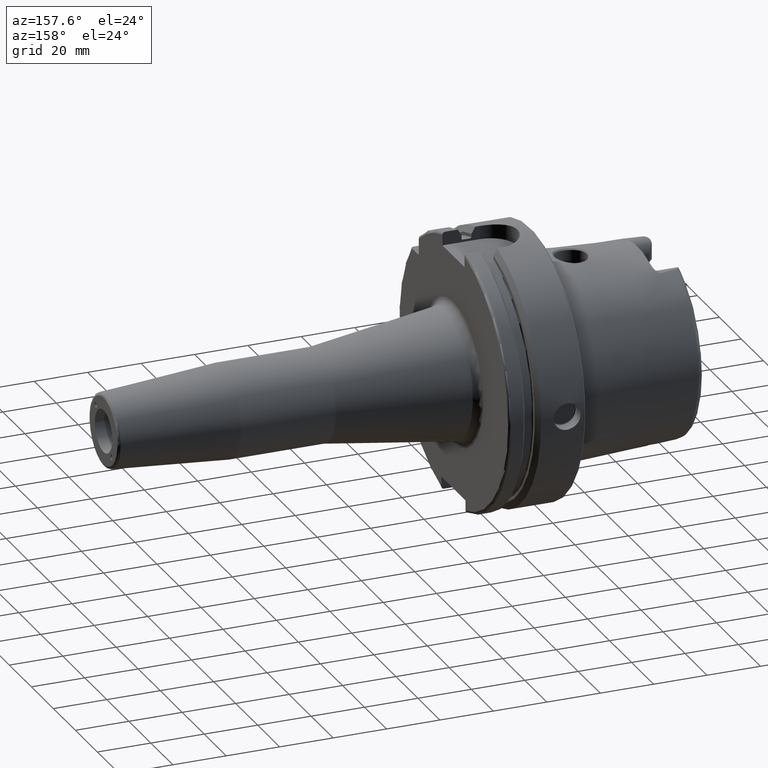
[diagram: clean part render]
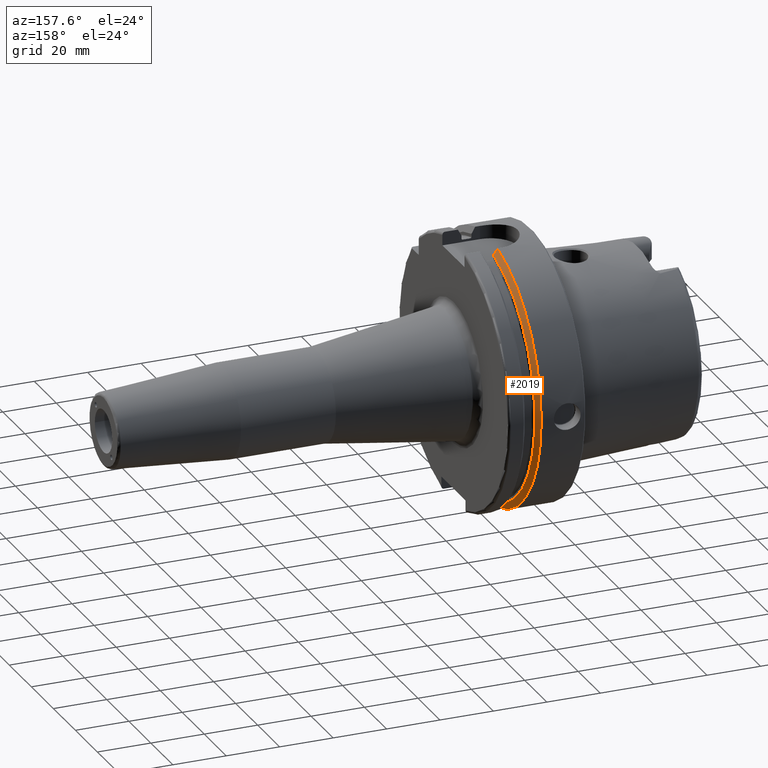
[diagram: same view with one face highlighted and labeled with its STEP entity id]
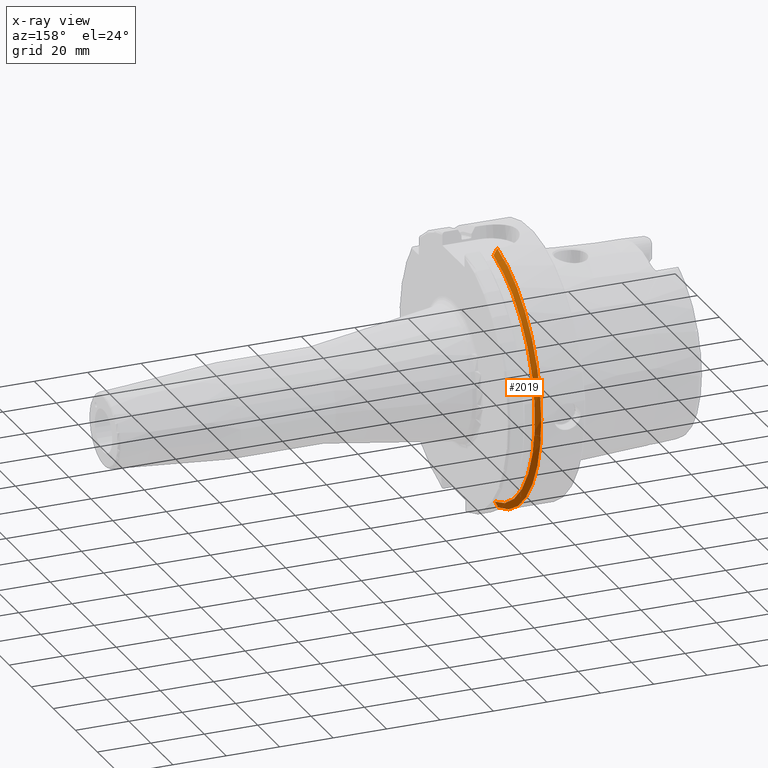
[diagram: x-ray of the same camera — body ghosted, the highlighted face saturated]
A machine part, auxiliary view. The second image highlights one B-rep face of the part: STEP entity #2019.
The next image is the same camera in x-ray: the body ghosted, the highlighted face saturated — about 0% of this face is hidden behind the body in this view.
In plain terms, the highlighted conical surface has half-angle 60 deg.
Its self-contained STEP definition (entity closure, byte-faithful):
#23=(
BOUNDED_CURVE()
B_SPLINE_CURVE(2,(#4098,#4099,#4100),.UNSPECIFIED.,.F.,.F.)
B_SPLINE_CURVE_WITH_KNOTS((3,3),(0.,0.282923490805558),.UNSPECIFIED.)
CURVE()
GEOMETRIC_REPRESENTATION_ITEM()
RATIONAL_B_SPLINE_CURVE((1.,1.00031934109636,1.))
REPRESENTATION_ITEM('')
);
#28=(
BOUNDED_CURVE()
B_SPLINE_CURVE(2,(#4263,#4264,#4265),.UNSPECIFIED.,.F.,.F.)
B_SPLINE_CURVE_WITH_KNOTS((3,3),(0.,0.281931851964124),.UNSPECIFIED.)
CURVE()
GEOMETRIC_REPRESENTATION_ITEM()
RATIONAL_B_SPLINE_CURVE((1.,1.00031639798907,1.))
REPRESENTATION_ITEM('')
);
#274=FACE_OUTER_BOUND('',#401,.T.);
#401=EDGE_LOOP('',(#1687,#1688,#1689,#1690));
#721=CIRCLE('',#2196,50.);
#745=CIRCLE('',#2245,47.5975952641917);
#920=VERTEX_POINT('',#3979);
#921=VERTEX_POINT('',#3981);
#939=VERTEX_POINT('',#4097);
#964=VERTEX_POINT('',#4259);
#1160=EDGE_CURVE('',#921,#920,#721,.T.);
#1190=EDGE_CURVE('',#939,#921,#23,.T.);
#1230=EDGE_CURVE('',#939,#964,#745,.T.);
#1232=EDGE_CURVE('',#920,#964,#28,.T.);
#1687=ORIENTED_EDGE('',*,*,#1190,.T.);
#1688=ORIENTED_EDGE('',*,*,#1160,.T.);
#1689=ORIENTED_EDGE('',*,*,#1232,.T.);
#1690=ORIENTED_EDGE('',*,*,#1230,.F.);
#1944=CONICAL_SURFACE('',#2246,48.7987976320958,1.0471975511966);
#2019=ADVANCED_FACE('',(#274),#1944,.T.);
#2196=AXIS2_PLACEMENT_3D('',#3982,#2612,#2613);
#2245=AXIS2_PLACEMENT_3D('',#4260,#2735,#2736);
#2246=AXIS2_PLACEMENT_3D('',#4262,#2738,#2739);
#2612=DIRECTION('center_axis',(1.,0.,0.));
#2613=DIRECTION('ref_axis',(0.,0.,-1.));
#2735=DIRECTION('center_axis',(1.,0.,0.));
#2736=DIRECTION('ref_axis',(0.,0.,-1.));
#2738=DIRECTION('center_axis',(-1.,0.,0.));
#2739=DIRECTION('ref_axis',(0.,1.,0.));
#3979=CARTESIAN_POINT('',(16.7379709790786,10.,48.9897948556636));
#3981=CARTESIAN_POINT('',(16.7379709790786,11.,-48.7749935930288));
#3982=CARTESIAN_POINT('Origin',(16.7379709790786,0.,0.));
#4097=CARTESIAN_POINT('',(18.125,11.,-46.3090819919139));
#4098=CARTESIAN_POINT('Ctrl Pts',(18.125,11.,-46.3090819919139));
#4099=CARTESIAN_POINT('Ctrl Pts',(17.4494711035784,11.,-47.5116880808765));
#4100=CARTESIAN_POINT('Ctrl Pts',(16.7379709790786,11.,-48.7749935930288));
#4259=CARTESIAN_POINT('',(18.125,10.,46.5352670018536));
#4260=CARTESIAN_POINT('Origin',(18.125,0.,0.));
#4262=CARTESIAN_POINT('Origin',(17.4314854895393,0.,0.));
#4263=CARTESIAN_POINT('Ctrl Pts',(16.7379709790786,10.,48.9897948556636));
#4264=CARTESIAN_POINT('Ctrl Pts',(17.4493054275198,10.,47.7323213252028));
#4265=CARTESIAN_POINT('Ctrl Pts',(18.125,10.,46.5352670018536));